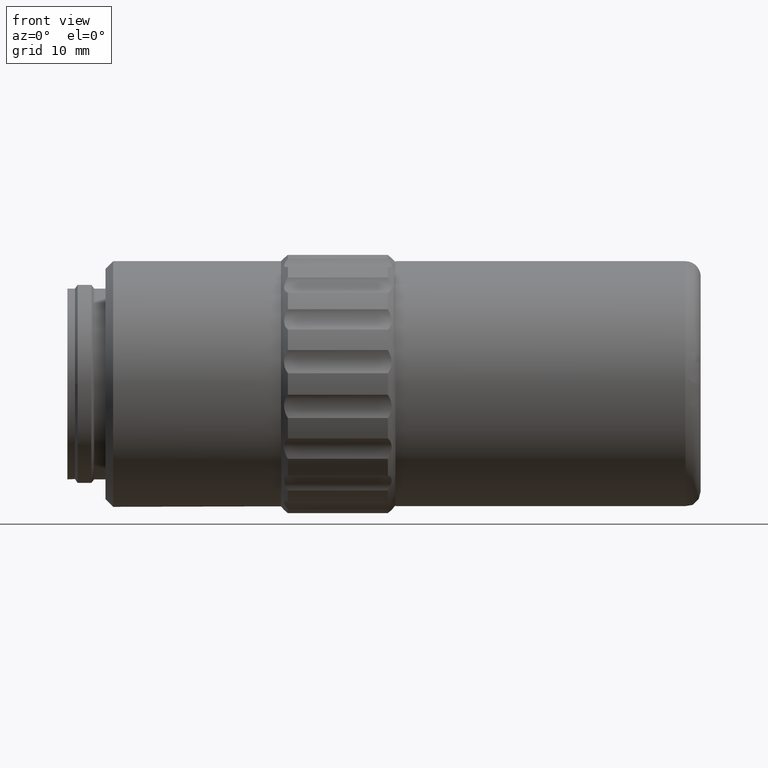
[diagram: clean part render]
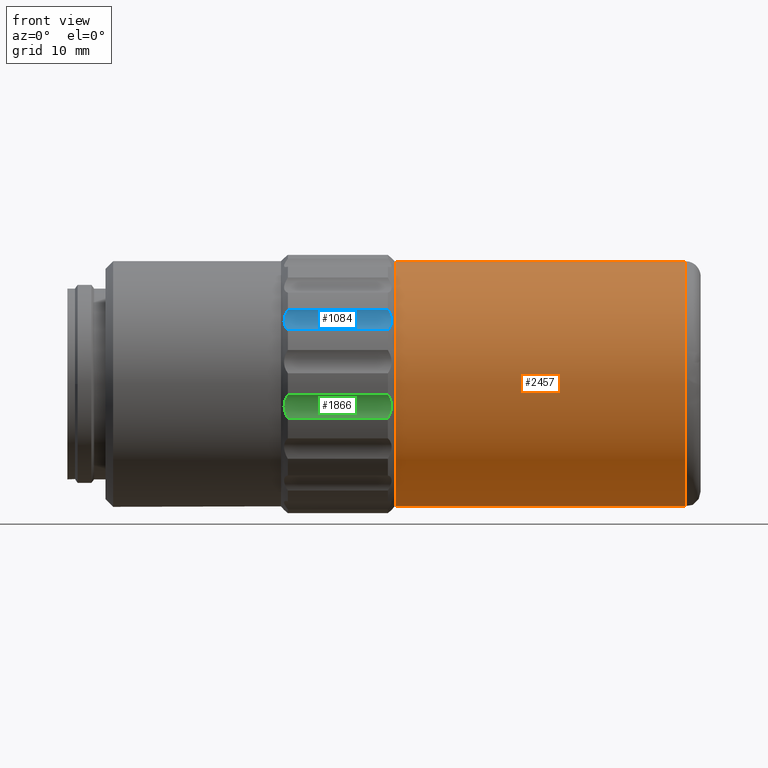
[diagram: same view with three faces highlighted in distinct colors, each labeled with its STEP entity id]
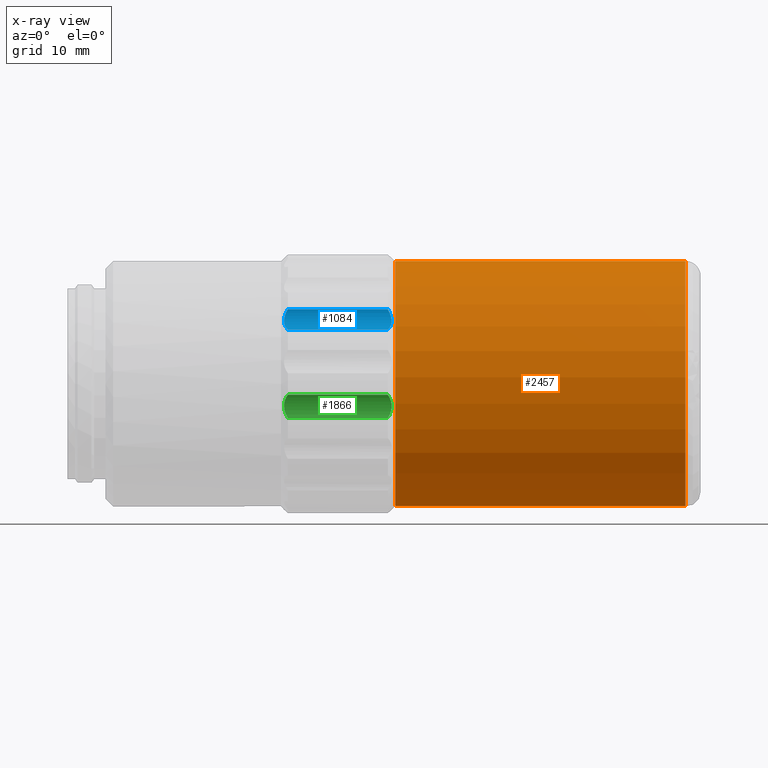
[diagram: x-ray of the same camera — body ghosted, the three highlighted faces saturated]
A machine part, front view with three faces highlighted in distinct colors.
The next image is the same camera in x-ray (body ghosted, the three faces saturated) — at least one of them is partly hidden behind the body in this view.
Their STEP definitions:

[orange] entity #2457 — the highlighted cylindrical surface (bore or boss wall) has radius 16.1 mm, axis along (-1, 0, 0).
#39 = DIRECTION ( 'NONE',  ( -1.000000000000000000, 0.000000000000000000, 0.000000000000000000 ) ) ;
#209 = CIRCLE ( 'NONE', #940, 16.10000000000000142 ) ;
#211 = AXIS2_PLACEMENT_3D ( 'NONE', #2488, #39, #2533 ) ;
#296 = DIRECTION ( 'NONE',  ( 0.000000000000000000, 0.000000000000000000, 1.000000000000000000 ) ) ;
#317 = CARTESIAN_POINT ( 'NONE',  ( 33.44685803487879383, 46.02096199999999726, 0.000000000000000000 ) ) ;
#430 = VERTEX_POINT ( 'NONE', #1990 ) ;
#438 = CIRCLE ( 'NONE', #211, 16.10000000000000142 ) ;
#734 = DIRECTION ( 'NONE',  ( 1.000000000000000000, -0.000000000000000000, -0.000000000000000000 ) ) ;
#885 = CYLINDRICAL_SURFACE ( 'NONE', #1511, 16.10000000000000142 ) ;
#940 = AXIS2_PLACEMENT_3D ( 'NONE', #317, #734, #296 ) ;
#984 = DIRECTION ( 'NONE',  ( -1.000000000000000000, 0.000000000000000000, 0.000000000000000000 ) ) ;
#1141 = ORIENTED_EDGE ( 'NONE', *, *, #1204, .T. ) ;
#1204 = EDGE_CURVE ( 'NONE', #2186, #2186, #209, .T. ) ;
#1435 = DIRECTION ( 'NONE',  ( 0.000000000000000000, 0.000000000000000000, 1.000000000000000000 ) ) ;
#1511 = AXIS2_PLACEMENT_3D ( 'NONE', #2759, #984, #1435 ) ;
#1520 = FACE_OUTER_BOUND ( 'NONE', #1882, .T. ) ;
#1784 = ORIENTED_EDGE ( 'NONE', *, *, #2268, .T. ) ;
#1882 = EDGE_LOOP ( 'NONE', ( #1141 ) ) ;
#1990 = CARTESIAN_POINT ( 'NONE',  ( 71.44685803487880094, 46.02096199999999726, 16.10000000000000142 ) ) ;
#2186 = VERTEX_POINT ( 'NONE', #2880 ) ;
#2268 = EDGE_CURVE ( 'NONE', #430, #430, #438, .T. ) ;
#2457 = ADVANCED_FACE ( 'NONE', ( #2890, #1520 ), #885, .T. ) ;
#2488 = CARTESIAN_POINT ( 'NONE',  ( 71.44685803487880094, 46.02096199999999726, 0.000000000000000000 ) ) ;
#2533 = DIRECTION ( 'NONE',  ( 0.000000000000000000, 0.000000000000000000, 1.000000000000000000 ) ) ;
#2759 = CARTESIAN_POINT ( 'NONE',  ( 44.14685803487879667, 46.02096199999999726, 0.000000000000000000 ) ) ;
#2784 = EDGE_LOOP ( 'NONE', ( #1784 ) ) ;
#2880 = CARTESIAN_POINT ( 'NONE',  ( 33.44685803487879383, 46.02096199999999726, 16.10000000000000142 ) ) ;
#2890 = FACE_OUTER_BOUND ( 'NONE', #2784, .T. ) ;

[blue] entity #1084 — the highlighted cylindrical surface (edge-blend (fillet) strip) has radius 3 mm, axis along (-1, 0, 0).
#61 = CARTESIAN_POINT ( 'NONE',  ( 18.85870489934782057, 31.86424395090688932, 8.499872551038858859 ) ) ;
#77 = CARTESIAN_POINT ( 'NONE',  ( 32.94671223884981970, 31.80451600533105250, 8.376639965934812082 ) ) ;
#233 = CARTESIAN_POINT ( 'NONE',  ( 19.34685803487881017, 32.13297559990991914, 9.804276299192830280 ) ) ;
#246 = FACE_OUTER_BOUND ( 'NONE', #1709, .T. ) ;
#274 = CARTESIAN_POINT ( 'NONE',  ( 19.34685803487881017, 32.13297559990991914, 9.804276299192830280 ) ) ;
#277 = EDGE_CURVE ( 'NONE', #1484, #1257, #1432, .T. ) ;
#298 = CARTESIAN_POINT ( 'NONE',  ( 32.71832649179923180, 32.11174389140475682, 9.297543592584467831 ) ) ;
#310 = VERTEX_POINT ( 'NONE', #1463 ) ;
#319 = CARTESIAN_POINT ( 'NONE',  ( 32.93501117040977988, 31.58149741732376725, 8.010141189208871637 ) ) ;
#451 = CARTESIAN_POINT ( 'NONE',  ( 53.58686043487880823, 29.13346662620340055, 9.750000000000000000 ) ) ;
#476 = CARTESIAN_POINT ( 'NONE',  ( 18.94098152749740649, 32.01281285169061164, 8.896813698364450573 ) ) ;
#666 = VECTOR ( 'NONE', #1800, 1000.000000000000000 ) ;
#667 = CARTESIAN_POINT ( 'NONE',  ( 32.44685803487876541, 32.13297559990991914, 9.804276299192837385 ) ) ;
#676 = LINE ( 'NONE', #1570, #666 ) ;
#682 = CARTESIAN_POINT ( 'NONE',  ( 19.07378008189505536, 32.11103400804049102, 9.293558664531953895 ) ) ;
#693 = CARTESIAN_POINT ( 'NONE',  ( 18.84700383090778431, 31.65835599380996968, 8.123483399945440553 ) ) ;
#737 = CARTESIAN_POINT ( 'NONE',  ( 32.59397570363886842, 30.80386254956549053, 7.245672108642462028 ) ) ;
#753 = CARTESIAN_POINT ( 'NONE',  ( 32.94700126034473442, 31.66112224774798278, 8.127785578975540659 ) ) ;
#928 = CARTESIAN_POINT ( 'NONE',  ( 18.90565193394953880, 31.96965089949758365, 8.762061639736753449 ) ) ;
#948 = VECTOR ( 'NONE', #2212, 1000.000000000000000 ) ;
#1084 = ADVANCED_FACE ( 'NONE', ( #246 ), #1123, .F. ) ;
#1123 = CYLINDRICAL_SURFACE ( 'NONE', #2711, 3.000000000000000888 ) ;
#1147 = VERTEX_POINT ( 'NONE', #2689 ) ;
#1176 = CARTESIAN_POINT ( 'NONE',  ( 32.88806413580806520, 31.40713848021163557, 7.787761549644993231 ) ) ;
#1211 = ORIENTED_EDGE ( 'NONE', *, *, #2556, .F. ) ;
#1253 = B_SPLINE_CURVE_WITH_KNOTS ( 'NONE', 3,
 ( #667, #2089, #298, #1850, #2288, #2777, #77, #753, #319, #1176, #2745, #1639, #737, #1622 ),
 .UNSPECIFIED., .F., .F.,
 ( 4, 2, 2, 2, 2, 2, 4 ),
 ( 1.398578778534940505E-17, 0.0008570537395405541025, 0.001285580609310826112, 0.001714107479081098664, 0.002142634348851370999, 0.002571161218621643117, 0.003428214958162182583 ),
 .UNSPECIFIED. ) ;
#1257 = VERTEX_POINT ( 'NONE', #274 ) ;
#1320 = CARTESIAN_POINT ( 'NONE',  ( 25.94685803487879738, 30.58621645913229870, 7.125210880294325477 ) ) ;
#1332 = CARTESIAN_POINT ( 'NONE',  ( 19.34685803487881017, 30.58621645913229514, 7.125210880294345905 ) ) ;
#1341 = DIRECTION ( 'NONE',  ( -1.000000000000000000, 0.000000000000000000, 0.000000000000000000 ) ) ;
#1380 = CARTESIAN_POINT ( 'NONE',  ( 19.20000062573680566, 30.80347752111276094, 7.245459005800721108 ) ) ;
#1432 = B_SPLINE_CURVE_WITH_KNOTS ( 'NONE', 3,
 ( #1332, #1380, #1842, #2219, #1794, #2704, #693, #2736, #61, #928, #476, #682, #2718, #233 ),
 .UNSPECIFIED., .F., .F.,
 ( 4, 2, 2, 2, 2, 2, 4 ),
 ( 8.887813025444319855E-18, 0.0008570537395405515005, 0.001285580609310827847, 0.001714107479081106254, 0.002142634348851384877, 0.002571161218621663067, 0.003428214958162207303 ),
 .UNSPECIFIED. ) ;
#1463 = CARTESIAN_POINT ( 'NONE',  ( 32.44685803487876541, 32.13297559990991914, 9.804276299192837385 ) ) ;
#1479 = ORIENTED_EDGE ( 'NONE', *, *, #2727, .F. ) ;
#1484 = VERTEX_POINT ( 'NONE', #1726 ) ;
#1494 = ORIENTED_EDGE ( 'NONE', *, *, #277, .F. ) ;
#1570 = CARTESIAN_POINT ( 'NONE',  ( 53.58686043487880823, 32.13297559990991914, 9.804276299192837385 ) ) ;
#1622 = CARTESIAN_POINT ( 'NONE',  ( 32.44685803487879383, 30.58621645913232356, 7.125210880294359228 ) ) ;
#1639 = CARTESIAN_POINT ( 'NONE',  ( 32.71993598786255575, 31.01754010897460034, 7.399571673583222875 ) ) ;
#1709 = EDGE_LOOP ( 'NONE', ( #1211, #1479, #1494, #2459 ) ) ;
#1726 = CARTESIAN_POINT ( 'NONE',  ( 19.34685803487881017, 30.58621645913229514, 7.125210880294345905 ) ) ;
#1794 = CARTESIAN_POINT ( 'NONE',  ( 18.90699781735017382, 31.40330651472118717, 7.783409789179930982 ) ) ;
#1800 = DIRECTION ( 'NONE',  ( 1.000000000000000000, -0.000000000000000000, -0.000000000000000000 ) ) ;
#1842 = CARTESIAN_POINT ( 'NONE',  ( 19.07538957795835444, 31.01444400173098970, 7.396964432529759215 ) ) ;
#1850 = CARTESIAN_POINT ( 'NONE',  ( 32.85210940846931038, 32.01351164868641774, 8.899086528648499694 ) ) ;
#2026 = LINE ( 'NONE', #1320, #948 ) ;
#2089 = CARTESIAN_POINT ( 'NONE',  ( 32.59371544402078769, 32.13746819945419020, 9.555998637511374127 ) ) ;
#2212 = DIRECTION ( 'NONE',  ( -1.000000000000000000, 0.000000000000000000, 0.000000000000000000 ) ) ;
#2219 = CARTESIAN_POINT ( 'NONE',  ( 18.94160666128826875, 31.31040182005772365, 7.681264582162548926 ) ) ;
#2288 = CARTESIAN_POINT ( 'NONE',  ( 32.88671825240741242, 31.97150365186628918, 8.767556099430427352 ) ) ;
#2459 = ORIENTED_EDGE ( 'NONE', *, *, #2694, .F. ) ;
#2556 = EDGE_CURVE ( 'NONE', #310, #1147, #1253, .T. ) ;
#2689 = CARTESIAN_POINT ( 'NONE',  ( 32.44685803487879383, 30.58621645913232356, 7.125210880294359228 ) ) ;
#2694 = EDGE_CURVE ( 'NONE', #1147, #1484, #2026, .T. ) ;
#2704 = CARTESIAN_POINT ( 'NONE',  ( 18.85967090375871180, 31.57679921079038721, 8.003639195957687136 ) ) ;
#2711 = AXIS2_PLACEMENT_3D ( 'NONE', #451, #1341, #2872 ) ;
#2718 = CARTESIAN_POINT ( 'NONE',  ( 19.19974036611872137, 32.13747616120598849, 9.555558641669250619 ) ) ;
#2727 = EDGE_CURVE ( 'NONE', #1257, #310, #676, .T. ) ;
#2736 = CARTESIAN_POINT ( 'NONE',  ( 18.84671480941285182, 31.80217333596834806, 8.372093230236098194 ) ) ;
#2745 = CARTESIAN_POINT ( 'NONE',  ( 32.85273454226017975, 31.31202075032431154, 7.683006173255041205 ) ) ;
#2777 = CARTESIAN_POINT ( 'NONE',  ( 32.93404516599888865, 31.86752573897096852, 8.507192313874586631 ) ) ;
#2872 = DIRECTION ( 'NONE',  ( 0.000000000000000000, 0.000000000000000000, 1.000000000000000000 ) ) ;

[green] entity #1866 — the highlighted cylindrical surface (edge-blend (fillet) strip) has radius 3 mm, axis along (-1, 0, 0).
#289 = CARTESIAN_POINT ( 'NONE',  ( 18.94160666128827941, 29.81459741884976822, -3.571575765922806678 ) ) ;
#290 = ORIENTED_EDGE ( 'NONE', *, *, #2231, .F. ) ;
#326 = CARTESIAN_POINT ( 'NONE',  ( 32.44685803487880804, 29.61726367720594766, -4.463034991433898035 ) ) ;
#357 = CARTESIAN_POINT ( 'NONE',  ( 32.88806413580805810, 29.82024706863964880, -3.427813229224472291 ) ) ;
#364 = EDGE_CURVE ( 'NONE', #417, #795, #2342, .T. ) ;
#383 = CARTESIAN_POINT ( 'NONE',  ( 32.44685803487877251, 29.08007986503451647, -1.416514203673299832 ) ) ;
#417 = VERTEX_POINT ( 'NONE', #502 ) ;
#428 = CARTESIAN_POINT ( 'NONE',  ( 19.34685803487881017, 29.61726367720593345, -4.463034991433935339 ) ) ;
#502 = CARTESIAN_POINT ( 'NONE',  ( 19.34685803487881728, 29.08007986503450581, -1.416514203673286065 ) ) ;
#504 = CARTESIAN_POINT ( 'NONE',  ( 18.85870489934783123, 29.71267404596758155, -2.588482820839966614 ) ) ;
#531 = CARTESIAN_POINT ( 'NONE',  ( 32.44685803487877251, 29.08007986503451647, -1.416514203673299832 ) ) ;
#576 = CARTESIAN_POINT ( 'NONE',  ( 32.71993598786256285, 29.77132104384358158, -3.975612932441852099 ) ) ;
#578 = VECTOR ( 'NONE', #976, 1000.000000000000000 ) ;
#590 = CARTESIAN_POINT ( 'NONE',  ( 32.88671825240740532, 29.62277607563510173, -2.314480119284870518 ) ) ;
#650 = VECTOR ( 'NONE', #2356, 1000.000000000000000 ) ;
#684 = VERTEX_POINT ( 'NONE', #971 ) ;
#694 = CARTESIAN_POINT ( 'NONE',  ( 18.85967090375870825, 29.81145125225689441, -3.153385542406657915 ) ) ;
#743 = CARTESIAN_POINT ( 'NONE',  ( 18.84671480941285537, 29.74726016049911692, -2.726265681694555187 ) ) ;
#795 = VERTEX_POINT ( 'NONE', #383 ) ;
#971 = CARTESIAN_POINT ( 'NONE',  ( 19.34685803487881017, 29.61726367720593345, -4.463034991433935339 ) ) ;
#976 = DIRECTION ( 'NONE',  ( 1.000000000000000000, -0.000000000000000000, -0.000000000000000000 ) ) ;
#1001 = CARTESIAN_POINT ( 'NONE',  ( 32.85210940846931749, 29.57040993796760020, -2.186719745017569050 ) ) ;
#1016 = CARTESIAN_POINT ( 'NONE',  ( 32.94671223884979838, 29.74613216397480997, -2.721276841238304378 ) ) ;
#1030 = FACE_OUTER_BOUND ( 'NONE', #1806, .T. ) ;
#1031 = CARTESIAN_POINT ( 'NONE',  ( 32.94700126034471310, 29.79624668935391441, -3.004082092195002662 ) ) ;
#1120 = B_SPLINE_CURVE_WITH_KNOTS ( 'NONE', 3,
 ( #428, #1312, #2202, #289, #2279, #694, #1144, #743, #504, #2469, #2059, #1407, #1604, #1381 ),
 .UNSPECIFIED., .F., .F.,
 ( 4, 2, 2, 2, 2, 2, 4 ),
 ( 1.514782153580211930E-17, 0.0008570537395405600656, 0.001285580609310832184, 0.001714107479081104302, 0.002142634348851376637, 0.002571161218621648321, 0.003428214958162189522 ),
 .UNSPECIFIED. ) ;
#1144 = CARTESIAN_POINT ( 'NONE',  ( 18.84700383090778431, 29.79689300327163792, -3.009155866290937009 ) ) ;
#1218 = CARTESIAN_POINT ( 'NONE',  ( 53.58686043487880823, 29.08007986503449871, -1.416514203673273409 ) ) ;
#1232 = LINE ( 'NONE', #2617, #650 ) ;
#1281 = CARTESIAN_POINT ( 'NONE',  ( 32.59397570363888974, 29.70655927031907595, -4.230856126619375601 ) ) ;
#1312 = CARTESIAN_POINT ( 'NONE',  ( 19.20000062573679855, 29.70640130127867096, -4.231266864385912818 ) ) ;
#1353 = ORIENTED_EDGE ( 'NONE', *, *, #364, .F. ) ;
#1381 = CARTESIAN_POINT ( 'NONE',  ( 19.34685803487881728, 29.08007986503450581, -1.416514203673286065 ) ) ;
#1407 = CARTESIAN_POINT ( 'NONE',  ( 19.07378008189505891, 29.39155459811816229, -1.821850393098590537 ) ) ;
#1477 = CYLINDRICAL_SURFACE ( 'NONE', #2383, 3.000000000000000000 ) ;
#1497 = DIRECTION ( 'NONE',  ( -1.000000000000000000, 0.000000000000000000, 0.000000000000000000 ) ) ;
#1498 = CARTESIAN_POINT ( 'NONE',  ( 32.71832649179921759, 29.38953693794697131, -1.818341456876848783 ) ) ;
#1560 = ORIENTED_EDGE ( 'NONE', *, *, #1596, .F. ) ;
#1596 = EDGE_CURVE ( 'NONE', #2518, #684, #1232, .T. ) ;
#1604 = CARTESIAN_POINT ( 'NONE',  ( 19.19974036611872847, 29.24340012357268748, -1.604150078087035247 ) ) ;
#1698 = CARTESIAN_POINT ( 'NONE',  ( 32.44685803487880804, 29.61726367720594766, -4.463034991433898035 ) ) ;
#1716 = B_SPLINE_CURVE_WITH_KNOTS ( 'NONE', 3,
 ( #531, #2099, #1498, #1001, #590, #2627, #1016, #1031, #1894, #357, #2837, #576, #1281, #1698 ),
 .UNSPECIFIED., .F., .F.,
 ( 4, 2, 2, 2, 2, 2, 4 ),
 ( 9.986437839578378192E-18, 0.0008570537395405388153, 0.001285580609310806380, 0.001714107479081073727, 0.002142634348851341075, 0.002571161218621608856, 0.003428214958162145286 ),
 .UNSPECIFIED. ) ;
#1806 = EDGE_LOOP ( 'NONE', ( #1865, #1353, #290, #1560 ) ) ;
#1865 = ORIENTED_EDGE ( 'NONE', *, *, #2570, .F. ) ;
#1866 = ADVANCED_FACE ( 'NONE', ( #1030 ), #1477, .F. ) ;
#1894 = CARTESIAN_POINT ( 'NONE',  ( 32.93501117040976567, 29.81087088656429884, -3.145384777659983033 ) ) ;
#1920 = DIRECTION ( 'NONE',  ( 0.000000000000000000, 0.000000000000000000, 1.000000000000000000 ) ) ;
#2059 = CARTESIAN_POINT ( 'NONE',  ( 18.94098152749741359, 29.57133557555759751, -2.188910012077406542 ) ) ;
#2099 = CARTESIAN_POINT ( 'NONE',  ( 32.59371544402079479, 29.24311120064134784, -1.603818139432597878 ) ) ;
#2202 = CARTESIAN_POINT ( 'NONE',  ( 19.07538957795835444, 29.77062519033893651, -3.979600334337186407 ) ) ;
#2231 = EDGE_CURVE ( 'NONE', #684, #417, #1120, .T. ) ;
#2279 = CARTESIAN_POINT ( 'NONE',  ( 18.90699781735017737, 29.82010887047673009, -3.433610011084523794 ) ) ;
#2319 = CARTESIAN_POINT ( 'NONE',  ( 53.58686043487880823, 26.81721081626189829, -3.386139464505140140 ) ) ;
#2342 = LINE ( 'NONE', #1218, #578 ) ;
#2356 = DIRECTION ( 'NONE',  ( -1.000000000000000000, 0.000000000000000000, 0.000000000000000000 ) ) ;
#2383 = AXIS2_PLACEMENT_3D ( 'NONE', #2319, #1497, #1920 ) ;
#2469 = CARTESIAN_POINT ( 'NONE',  ( 18.90565193394954946, 29.62488855559159973, -2.319880045867564800 ) ) ;
#2518 = VERTEX_POINT ( 'NONE', #326 ) ;
#2570 = EDGE_CURVE ( 'NONE', #795, #2518, #1716, .T. ) ;
#2617 = CARTESIAN_POINT ( 'NONE',  ( 25.94685803487879738, 29.61726367720595121, -4.463034991433957543 ) ) ;
#2627 = CARTESIAN_POINT ( 'NONE',  ( 32.93404516599887444, 29.71048298862090320, -2.580766064489512512 ) ) ;
#2837 = CARTESIAN_POINT ( 'NONE',  ( 32.85273454226017975, 29.81471811820888362, -3.569201001427910303 ) ) ;